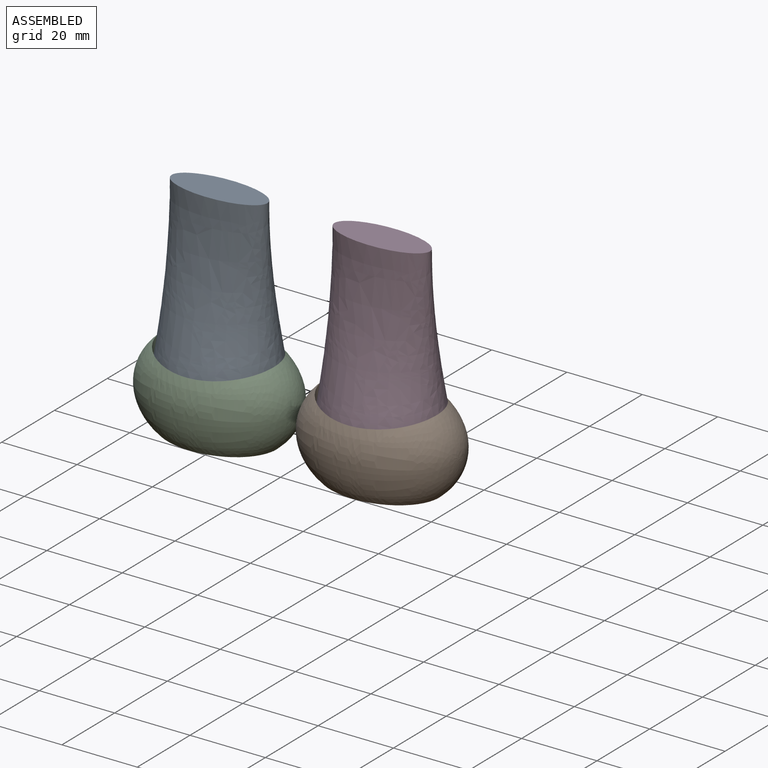
[diagram: assembled view]
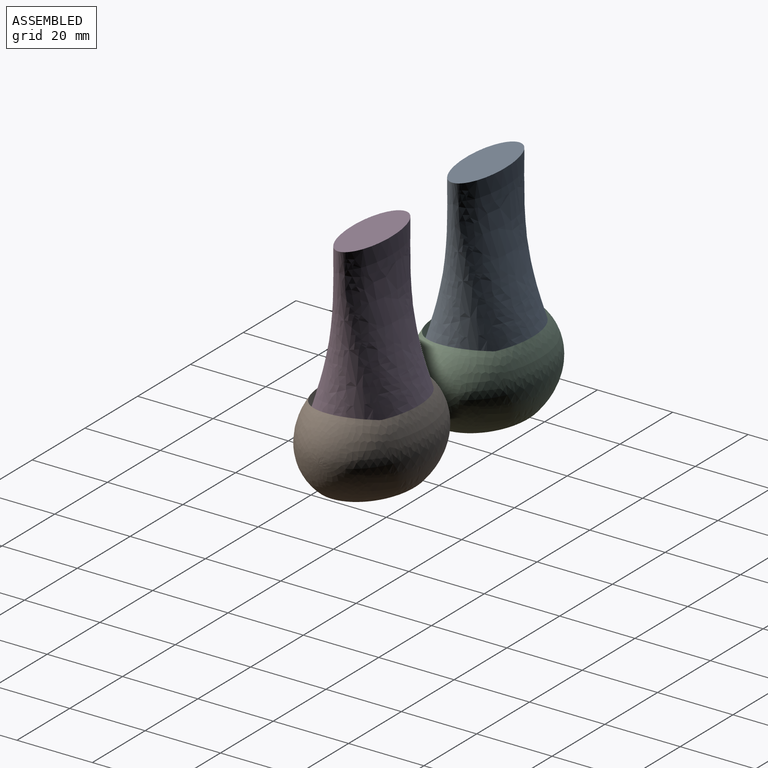
[diagram: assembled view, second angle]
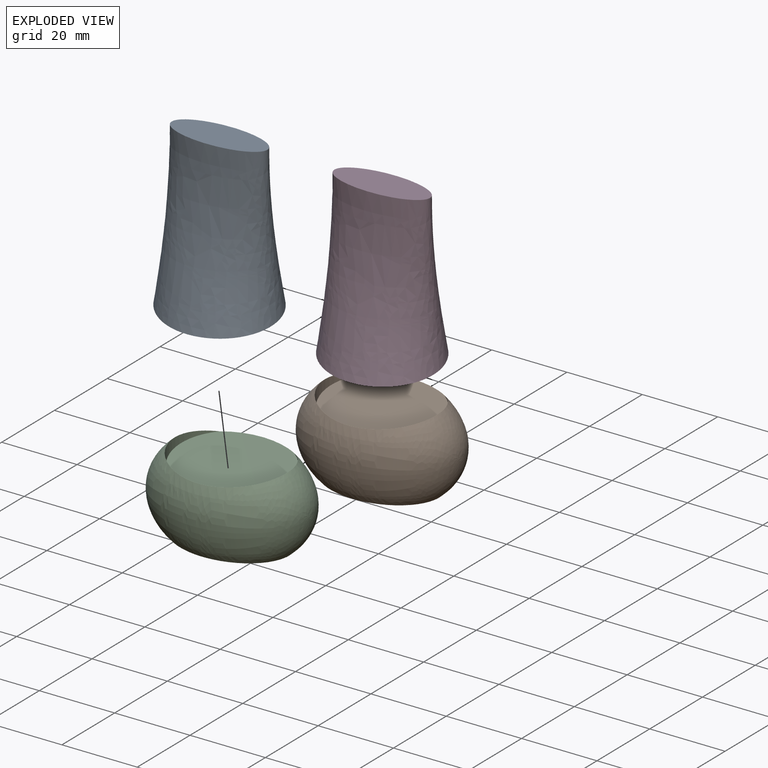
[diagram: exploded view]
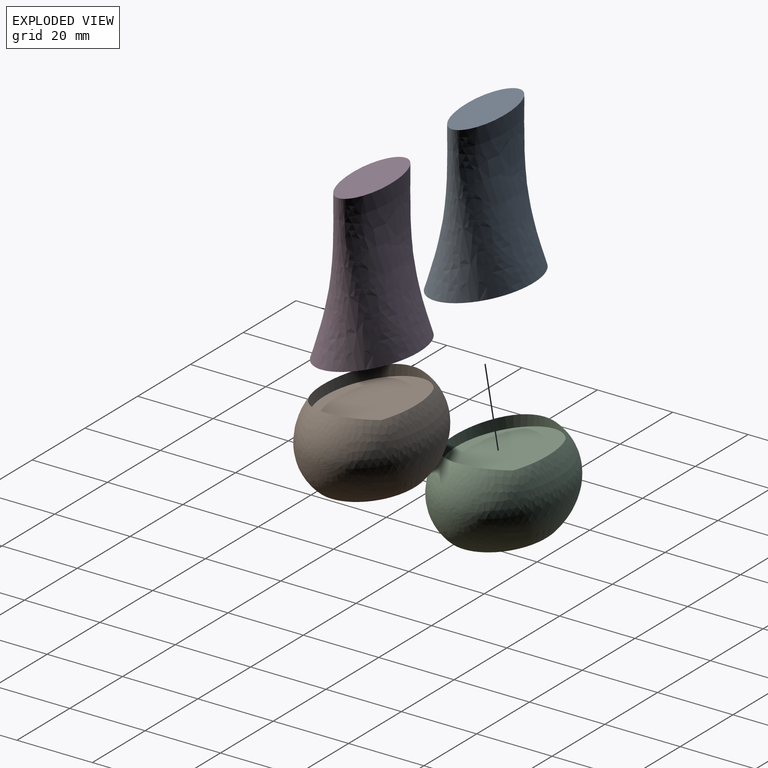
[diagram: exploded view, second angle]
ASSEMBLY  parts=4 mates=2
PART A: 3 faces, bbox 30.5x25x42.8 mm
  f0: plane 25.4x10.16mm, normal (0,0,1), area 202.7mm2, adj f2
  f1: plane 30.49x25.02mm, normal (0,0.17,-0.98), area 608mm2, adj f2
  f2: bspline ~42.84x30.46mm, area 2776.7mm2, adj f0,f1
PART B: 4 faces, bbox 40.6x30.5x30.5 mm
  f0: revolved ~40.64x30.48mm, area 2238.1mm2, adj f1,f2,f3
  f1: extruded ~30.44x22.53mm, area 154.1mm2, adj f0,f2
  f2: plane 30.48x24.25mm, normal (0,-0.18,0.98), area 597.4mm2, adj f0,f1
  f3: plane 30.3x22.73mm, normal (0,0,-1), area 540.5mm2, adj f0
PART C: same geometry as B
PART D: same geometry as A
PLACE A t=(-28.49,40.45,18.22)mm
PLACE B rot(axis=(-1,0,0),0.1deg) t=(14.69,40.45,-22.42)mm
PLACE C rot(axis=(-1,0,0),0.1deg) t=(-28.49,40.45,-22.42)mm
PLACE D t=(14.69,40.45,18.22)mm
MATE fastened D.f1 <-> B.f2  axis (0,0.17,-0.98) through (14.69,40.45,-22.42)mm
MATE revolute C.f2 <-> A.f1  axis (0,-0.17,0.98) through (-28.49,40.45,-22.42)mm
